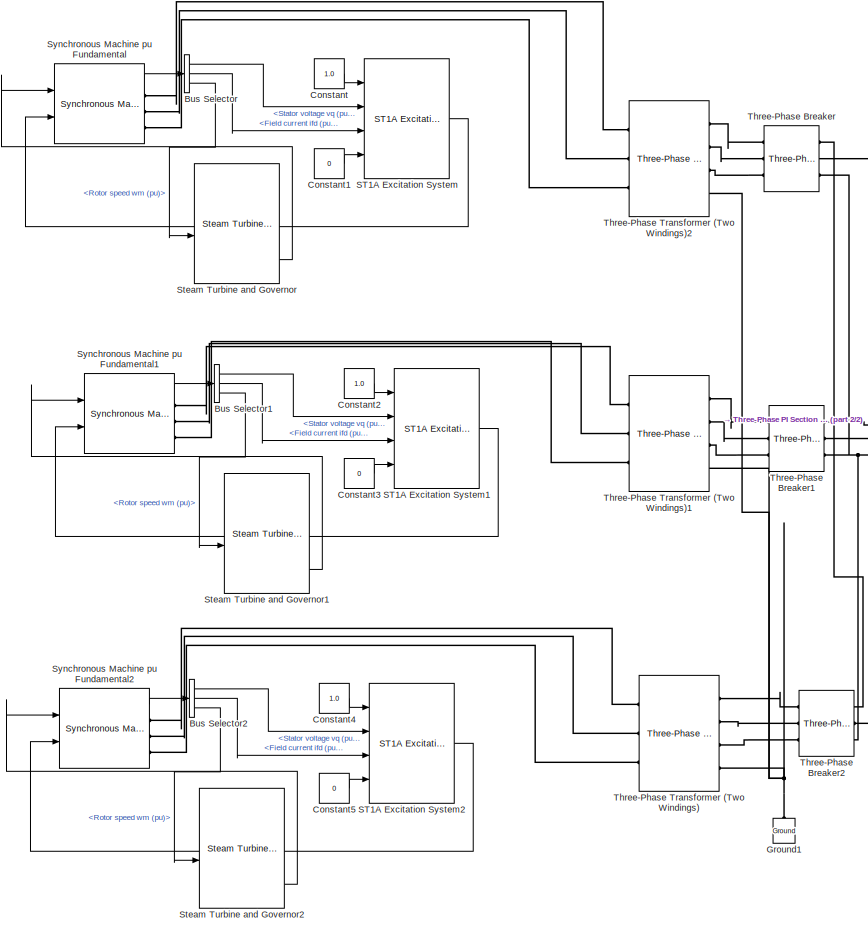
[diagram: root canvas - part 1/2, left side, full height]
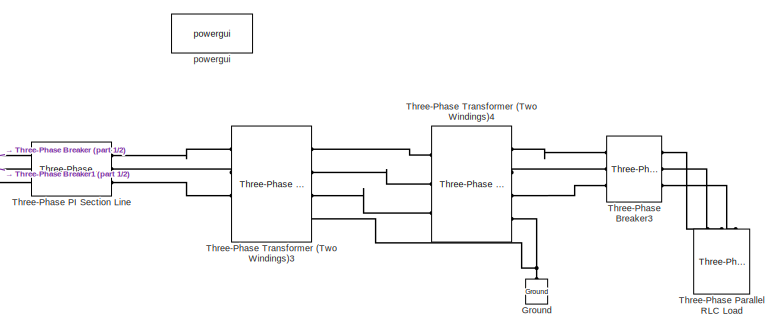
[diagram: root canvas - part 2/2, middle right region]
MODEL slx_405803b03300
KIND model
CONFIG AbsTol = auto
CONFIG EnableMultiTasking = off
CONFIG FixedStep = auto
CONFIG MaxStep = auto
CONFIG MinStep = auto
CONFIG RelTol = 1e-3
CONFIG SampleTimeConstraint = Unconstrained
CONFIG Solver = VariableStepAuto
CONFIG SolverName = VariableStepAuto
CONFIG StartTime = 0.0
CONFIG StopTime = 10.0
BLOCK [BusSelector] Bus Selector
  OutputSignals = dq0 components.Stator voltage  vq (pu),dq0 components.Field current  ifd (pu),Mechanical.Rotor speed  wm (pu)
  Ports = [1, 3]
BLOCK [BusSelector] Bus Selector1
  OutputSignals = dq0 components.Stator voltage  vq (pu),dq0 components.Field current  ifd (pu),Mechanical.Rotor speed  wm (pu)
  Ports = [1, 3]
BLOCK [BusSelector] Bus Selector2
  OutputSignals = dq0 components.Stator voltage  vq (pu),dq0 components.Field current  ifd (pu),Mechanical.Rotor speed  wm (pu)
  Ports = [1, 3]
BLOCK [Constant] Constant
  Value = 1.0
BLOCK [Constant] Constant1
  Value = 0
BLOCK [Constant] Constant2
  Value = 1.0
BLOCK [Constant] Constant3
  Value = 0
BLOCK [Constant] Constant4
  Value = 1.0
BLOCK [Constant] Constant5
  Value = 0
BLOCK [Reference] Ground  REF=powerlib/Elements/Ground
  NameLocation = right
  Ports = [0, 0, 0, 0, 0, 1]
  SourceBlock = powerlib/Elements/Ground
  SourceProductBaseCode = PS
  SourceType = Ground
BLOCK [Reference] Ground1  REF=powerlib/Elements/Ground
  NameLocation = right
  Ports = [0, 0, 0, 0, 0, 1]
  SourceBlock = powerlib/Elements/Ground
  SourceProductBaseCode = PS
  SourceType = Ground
BLOCK [Reference] ST1A Excitation System  REF=sps_avr/ST1A
Excitation System
  Ports = [4, 1]
  SourceBlock = sps_avr/ST1A\nExcitation System
  SourceProductBaseCode = PS
  SourceType = ST1A Excitation System
BLOCK [Reference] ST1A Excitation System1  REF=sps_avr/ST1A
Excitation System
  Ports = [4, 1]
  SourceBlock = sps_avr/ST1A\nExcitation System
  SourceProductBaseCode = PS
  SourceType = ST1A Excitation System
BLOCK [Reference] ST1A Excitation System2  REF=sps_avr/ST1A
Excitation System
  Ports = [4, 1]
  SourceBlock = sps_avr/ST1A\nExcitation System
  SourceProductBaseCode = PS
  SourceType = ST1A Excitation System
BLOCK [Reference] Steam Turbine and Governor  REF=powerlib/Machines/Steam Turbine
and Governor
  Ports = [4, 4]
  SourceBlock = powerlib/Machines/Steam Turbine\nand Governor
  SourceProductBaseCode = PS
  SourceType = Steam Turbine and Governor
BLOCK [Reference] Steam Turbine and Governor1  REF=powerlib/Machines/Steam Turbine
and Governor
  Ports = [4, 4]
  SourceBlock = powerlib/Machines/Steam Turbine\nand Governor
  SourceProductBaseCode = PS
  SourceType = Steam Turbine and Governor
BLOCK [Reference] Steam Turbine and Governor2  REF=powerlib/Machines/Steam Turbine
and Governor
  Ports = [4, 4]
  SourceBlock = powerlib/Machines/Steam Turbine\nand Governor
  SourceProductBaseCode = PS
  SourceType = Steam Turbine and Governor
BLOCK [Reference] Synchronous Machine pu Fundamental  REF=powerlib/Machines/Synchronous Machine
pu Fundamental
  Ports = [2, 1, 0, 0, 0, 0, 3]
  SourceBlock = powerlib/Machines/Synchronous Machine\npu Fundamental
  SourceProductBaseCode = PS
  SourceType = Synchronous Machine
BLOCK [Reference] Synchronous Machine pu Fundamental1  REF=powerlib/Machines/Synchronous Machine
pu Fundamental
  Ports = [2, 1, 0, 0, 0, 0, 3]
  SourceBlock = powerlib/Machines/Synchronous Machine\npu Fundamental
  SourceProductBaseCode = PS
  SourceType = Synchronous Machine
BLOCK [Reference] Synchronous Machine pu Fundamental2  REF=powerlib/Machines/Synchronous Machine
pu Fundamental
  Ports = [2, 1, 0, 0, 0, 0, 3]
  SourceBlock = powerlib/Machines/Synchronous Machine\npu Fundamental
  SourceProductBaseCode = PS
  SourceType = Synchronous Machine
BLOCK [Reference] Three-Phase Breaker  REF=powerlib/Elements/Three-Phase Breaker
  Ports = [0, 0, 0, 0, 0, 3, 3]
  SourceBlock = powerlib/Elements/Three-Phase Breaker
  SourceProductBaseCode = PS
  SourceType = Three-Phase Breaker
BLOCK [Reference] Three-Phase Breaker1  REF=powerlib/Elements/Three-Phase Breaker
  Ports = [0, 0, 0, 0, 0, 3, 3]
  SourceBlock = powerlib/Elements/Three-Phase Breaker
  SourceProductBaseCode = PS
  SourceType = Three-Phase Breaker
BLOCK [Reference] Three-Phase Breaker2  REF=powerlib/Elements/Three-Phase Breaker
  Ports = [0, 0, 0, 0, 0, 3, 3]
  SourceBlock = powerlib/Elements/Three-Phase Breaker
  SourceProductBaseCode = PS
  SourceType = Three-Phase Breaker
BLOCK [Reference] Three-Phase Breaker3  REF=powerlib/Elements/Three-Phase Breaker
  Ports = [0, 0, 0, 0, 0, 3, 3]
  SourceBlock = powerlib/Elements/Three-Phase Breaker
  SourceProductBaseCode = PS
  SourceType = Three-Phase Breaker
BLOCK [Reference] Three-Phase PI Section Line  REF=powerlib/Elements/Three-Phase
PI Section Line
  AttributesFormatString = \n
  Ports = [0, 0, 0, 0, 0, 3, 3]
  SourceBlock = powerlib/Elements/Three-Phase\nPI Section Line
  SourceProductBaseCode = PS
  SourceType = Three-Phase PI Section Line
BLOCK [Reference] Three-Phase Parallel RLC Load  REF=powerlib/Elements/Three-Phase
Parallel RLC Load
  AttributesFormatString = \n
  NameLocation = right
  Ports = [0, 0, 0, 0, 0, 3]
  SourceBlock = powerlib/Elements/Three-Phase\nParallel RLC Load
  SourceProductBaseCode = PS
  SourceType = Three-Phase Parallel RLC Load
BLOCK [Reference] Three-Phase Transformer (Two Windings)  REF=powerlib/Elements/Three-Phase
Transformer
(Two Windings)
  Ports = [0, 0, 0, 0, 0, 3, 4]
  SourceBlock = powerlib/Elements/Three-Phase\nTransformer\n(Two Windings)
  SourceProductBaseCode = PS
  SourceType = Three-Phase Transformer (Two Windings)
BLOCK [Reference] Three-Phase Transformer (Two Windings)1  REF=powerlib/Elements/Three-Phase
Transformer
(Two Windings)
  Ports = [0, 0, 0, 0, 0, 3, 4]
  SourceBlock = powerlib/Elements/Three-Phase\nTransformer\n(Two Windings)
  SourceProductBaseCode = PS
  SourceType = Three-Phase Transformer (Two Windings)
BLOCK [Reference] Three-Phase Transformer (Two Windings)2  REF=powerlib/Elements/Three-Phase
Transformer
(Two Windings)
  Ports = [0, 0, 0, 0, 0, 3, 4]
  SourceBlock = powerlib/Elements/Three-Phase\nTransformer\n(Two Windings)
  SourceProductBaseCode = PS
  SourceType = Three-Phase Transformer (Two Windings)
BLOCK [Reference] Three-Phase Transformer (Two Windings)3  REF=powerlib/Elements/Three-Phase
Transformer
(Two Windings)
  Ports = [0, 0, 0, 0, 0, 4, 4]
  SourceBlock = powerlib/Elements/Three-Phase\nTransformer\n(Two Windings)
  SourceProductBaseCode = PS
  SourceType = Three-Phase Transformer (Two Windings)
BLOCK [Reference] Three-Phase Transformer (Two Windings)4  REF=powerlib/Elements/Three-Phase
Transformer
(Two Windings)
  Ports = [0, 0, 0, 0, 0, 3, 4]
  SourceBlock = powerlib/Elements/Three-Phase\nTransformer\n(Two Windings)
  SourceProductBaseCode = PS
  SourceType = Three-Phase Transformer (Two Windings)
BLOCK [Reference] powergui  REF=powerlib/powergui
  Ports = []
  Priority = 1
  SourceBlock = powerlib/powergui
  SourceProductBaseCode = PS
  SourceType = PSB option menu block
LINE Bus Selector1:1 -> ST1A Excitation System1:2
LINE Bus Selector1:2 -> ST1A Excitation System1:3
LINE Bus Selector1:3 -> Steam Turbine and Governor1:3
LINE Bus Selector2:1 -> ST1A Excitation System2:2
LINE Bus Selector2:2 -> ST1A Excitation System2:3
LINE Bus Selector2:3 -> Steam Turbine and Governor2:3
LINE Bus Selector:1 -> ST1A Excitation System:2
LINE Bus Selector:2 -> ST1A Excitation System:3
LINE Bus Selector:3 -> Steam Turbine and Governor:3
LINE Constant1:1 -> ST1A Excitation System:4
LINE Constant2:1 -> ST1A Excitation System1:1
LINE Constant3:1 -> ST1A Excitation System1:4
LINE Constant4:1 -> ST1A Excitation System2:1
LINE Constant5:1 -> ST1A Excitation System2:4
LINE Constant:1 -> ST1A Excitation System:1
LINE ST1A Excitation System1:1 -> Synchronous Machine pu Fundamental1:2
LINE ST1A Excitation System2:1 -> Synchronous Machine pu Fundamental2:2
LINE ST1A Excitation System:1 -> Synchronous Machine pu Fundamental:2
LINE Steam Turbine and Governor1:4 -> Synchronous Machine pu Fundamental1:1
LINE Steam Turbine and Governor2:4 -> Synchronous Machine pu Fundamental2:1
LINE Steam Turbine and Governor:4 -> Synchronous Machine pu Fundamental:1
LINE Synchronous Machine pu Fundamental1:1 -> Bus Selector1:1
LINE Synchronous Machine pu Fundamental2:1 -> Bus Selector2:1
LINE Synchronous Machine pu Fundamental:1 -> Bus Selector:1
PNET net1: Ground1:LConn1 -- Three-Phase Transformer (Two Windings)1:RConn4 -- Three-Phase Transformer (Two Windings)2:RConn4 -- Three-Phase Transformer (Two Windings):RConn4
PNET net2: Ground:LConn1 -- Three-Phase Transformer (Two Windings)3:RConn4 -- Three-Phase Transformer (Two Windings)4:RConn4
PLINE Synchronous Machine pu Fundamental1:RConn1 -- Three-Phase Transformer (Two Windings)1:LConn1
PLINE Synchronous Machine pu Fundamental1:RConn2 -- Three-Phase Transformer (Two Windings)1:LConn2
PLINE Synchronous Machine pu Fundamental1:RConn3 -- Three-Phase Transformer (Two Windings)1:LConn3
PLINE Synchronous Machine pu Fundamental2:RConn1 -- Three-Phase Transformer (Two Windings):LConn1
PLINE Synchronous Machine pu Fundamental2:RConn2 -- Three-Phase Transformer (Two Windings):LConn2
PLINE Synchronous Machine pu Fundamental2:RConn3 -- Three-Phase Transformer (Two Windings):LConn3
PLINE Synchronous Machine pu Fundamental:RConn1 -- Three-Phase Transformer (Two Windings)2:LConn1
PLINE Synchronous Machine pu Fundamental:RConn2 -- Three-Phase Transformer (Two Windings)2:LConn2
PLINE Synchronous Machine pu Fundamental:RConn3 -- Three-Phase Transformer (Two Windings)2:LConn3
PLINE Three-Phase Breaker1:LConn1 -- Three-Phase Transformer (Two Windings)1:RConn1
PLINE Three-Phase Breaker1:LConn2 -- Three-Phase Transformer (Two Windings)1:RConn2
PLINE Three-Phase Breaker1:LConn3 -- Three-Phase Transformer (Two Windings)1:RConn3
PNET net3: Three-Phase Breaker1:RConn1 -- Three-Phase Breaker2:RConn1 -- Three-Phase Breaker:RConn1 -- Three-Phase PI Section Line:LConn1
PNET net4: Three-Phase Breaker1:RConn2 -- Three-Phase Breaker2:RConn2 -- Three-Phase Breaker:RConn2 -- Three-Phase PI Section Line:LConn2
PNET net5: Three-Phase Breaker1:RConn3 -- Three-Phase Breaker2:RConn3 -- Three-Phase Breaker:RConn3 -- Three-Phase PI Section Line:LConn3
PLINE Three-Phase Breaker2:LConn1 -- Three-Phase Transformer (Two Windings):RConn1
PLINE Three-Phase Breaker2:LConn2 -- Three-Phase Transformer (Two Windings):RConn2
PLINE Three-Phase Breaker2:LConn3 -- Three-Phase Transformer (Two Windings):RConn3
PLINE Three-Phase Breaker3:LConn1 -- Three-Phase Transformer (Two Windings)4:RConn1
PLINE Three-Phase Breaker3:LConn2 -- Three-Phase Transformer (Two Windings)4:RConn2
PLINE Three-Phase Breaker3:LConn3 -- Three-Phase Transformer (Two Windings)4:RConn3
PLINE Three-Phase Breaker3:RConn1 -- Three-Phase Parallel RLC Load:LConn1
PLINE Three-Phase Breaker3:RConn2 -- Three-Phase Parallel RLC Load:LConn2
PLINE Three-Phase Breaker3:RConn3 -- Three-Phase Parallel RLC Load:LConn3
PLINE Three-Phase Breaker:LConn1 -- Three-Phase Transformer (Two Windings)2:RConn1
PLINE Three-Phase Breaker:LConn2 -- Three-Phase Transformer (Two Windings)2:RConn2
PLINE Three-Phase Breaker:LConn3 -- Three-Phase Transformer (Two Windings)2:RConn3
PLINE Three-Phase PI Section Line:RConn1 -- Three-Phase Transformer (Two Windings)3:LConn1
PLINE Three-Phase PI Section Line:RConn2 -- Three-Phase Transformer (Two Windings)3:LConn2
PLINE Three-Phase PI Section Line:RConn3 -- Three-Phase Transformer (Two Windings)3:LConn3
PLINE Three-Phase Transformer (Two Windings)3:RConn1 -- Three-Phase Transformer (Two Windings)4:LConn1
PLINE Three-Phase Transformer (Two Windings)3:RConn2 -- Three-Phase Transformer (Two Windings)4:LConn2
PLINE Three-Phase Transformer (Two Windings)3:RConn3 -- Three-Phase Transformer (Two Windings)4:LConn3
note: PNET lines group multi-terminal physical nets as a canonical sorted terminal list (undirected conserving connections); 2-terminal nets keep the pairwise PLINE form
